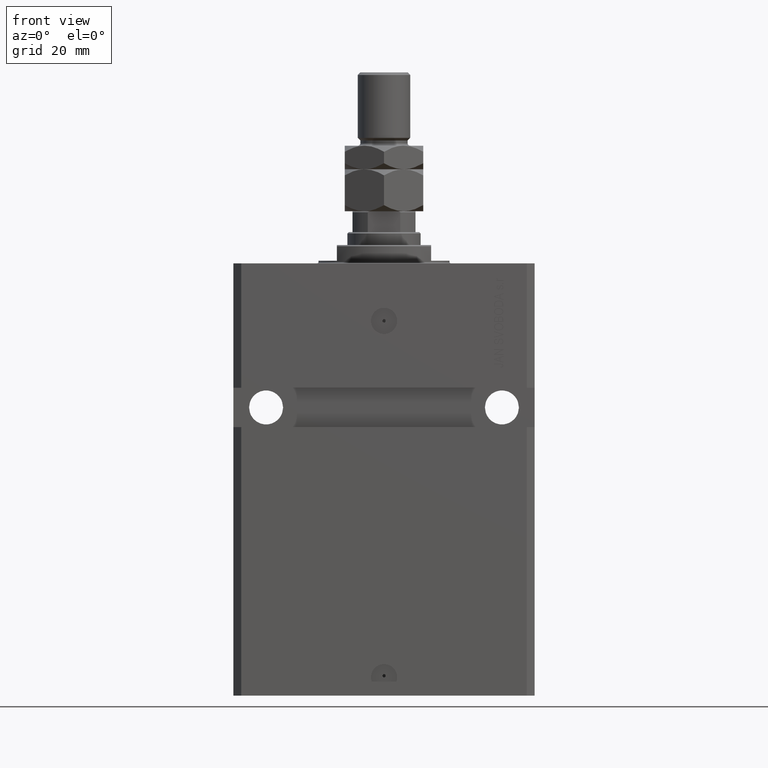
[diagram: clean part render]
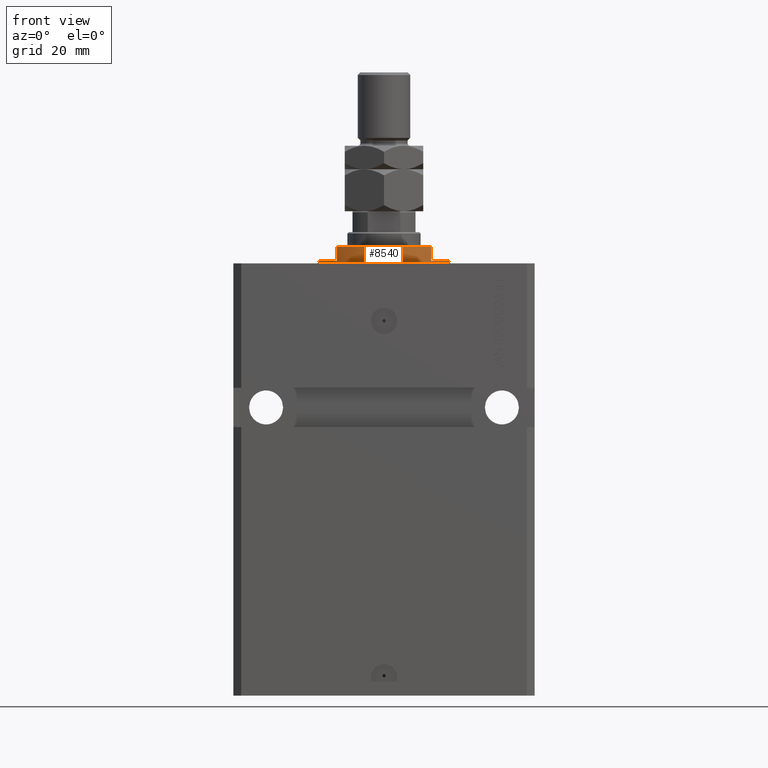
[diagram: same view with one face highlighted and labeled with its STEP entity id]
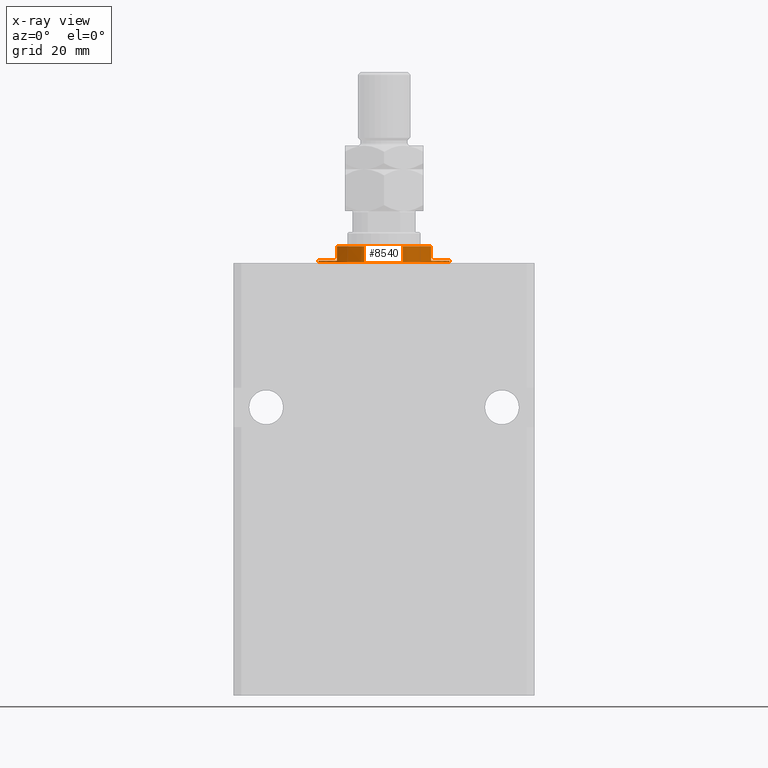
[diagram: x-ray of the same camera — body ghosted, the highlighted face saturated]
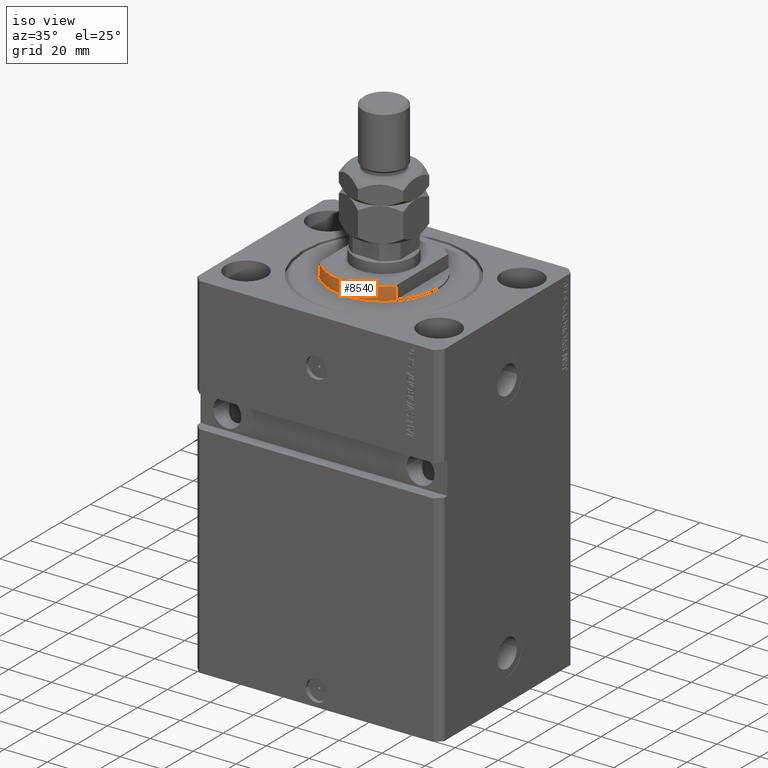
[diagram: same view with one face highlighted and labeled with its STEP entity id]
A machine part, front view. The second image highlights one B-rep face of the part: STEP entity #8540.
The next image is the same camera in x-ray: the body ghosted, the highlighted face saturated — about 0% of this face is hidden behind the body in this view.
A second angle (iso view) of the same face is appended — the face is thin or edge-on in the first view.
In plain terms, the highlighted cylindrical surface (partial cylindrical patch) has radius 25 mm, axis along (0, 0, -1).
Its self-contained STEP definition (entity closure, byte-faithful):
#126 = AXIS2_PLACEMENT_3D ( 'NONE', #12617, #46603, #38848 ) ;
#620 = DIRECTION ( 'NONE',  ( 0.000000000000000000, 0.000000000000000000, -1.000000000000000000 ) ) ;
#1691 = DIRECTION ( 'NONE',  ( -0.000000000000000000, -0.000000000000000000, 1.000000000000000000 ) ) ;
#1914 = VERTEX_POINT ( 'NONE', #24961 ) ;
#4361 = DIRECTION ( 'NONE',  ( -0.000000000000000000, -0.000000000000000000, 1.000000000000000000 ) ) ;
#4536 = VECTOR ( 'NONE', #31684, 1000.000000000000000 ) ;
#5081 = DIRECTION ( 'NONE',  ( 1.000000000000000000, 0.000000000000000000, 0.000000000000000000 ) ) ;
#5571 = LINE ( 'NONE', #34995, #21877 ) ;
#5579 = AXIS2_PLACEMENT_3D ( 'NONE', #23525, #32817, #38314 ) ;
#8540 = ADVANCED_FACE ( 'NONE', ( #26515 ), #16046, .T. ) ;
#8973 = ORIENTED_EDGE ( 'NONE', *, *, #14173, .T. ) ;
#10666 = AXIS2_PLACEMENT_3D ( 'NONE', #34275, #4361, #5081 ) ;
#11076 = CARTESIAN_POINT ( 'NONE',  ( -18.00000000000000000, -17.34935157289747920, -7.000000000000000000 ) ) ;
#12617 = CARTESIAN_POINT ( 'NONE',  ( 0.000000000000000000, 0.000000000000000000, -1.000000000000000000 ) ) ;
#12660 = LINE ( 'NONE', #20215, #31200 ) ;
#13334 = AXIS2_PLACEMENT_3D ( 'NONE', #32789, #47808, #40768 ) ;
#13555 = CARTESIAN_POINT ( 'NONE',  ( -25.00000000000000000, 3.061616997868383043E-15, -0.4999999999999995559 ) ) ;
#13856 = ORIENTED_EDGE ( 'NONE', *, *, #30691, .F. ) ;
#14173 = EDGE_CURVE ( 'NONE', #42818, #40087, #35565, .T. ) ;
#14228 = CARTESIAN_POINT ( 'NONE',  ( 18.00000000000000000, -17.34935157289747920, -6.499999999999971578 ) ) ;
#14982 = LINE ( 'NONE', #11076, #27025 ) ;
#15184 = DIRECTION ( 'NONE',  ( -1.000000000000000000, 0.000000000000000000, 0.000000000000000000 ) ) ;
#16000 = CARTESIAN_POINT ( 'NONE',  ( 25.00000000000000000, 0.000000000000000000, -0.4999999999999995559 ) ) ;
#16046 = CYLINDRICAL_SURFACE ( 'NONE', #10666, 25.00000000000000000 ) ;
#18752 = EDGE_CURVE ( 'NONE', #26145, #20431, #14982, .T. ) ;
#20215 = CARTESIAN_POINT ( 'NONE',  ( 18.00000000000000000, -17.34935157289747920, -7.000000000000000000 ) ) ;
#20431 = VERTEX_POINT ( 'NONE', #39329 ) ;
#21229 = CARTESIAN_POINT ( 'NONE',  ( 18.00000000000000000, -17.34935157289747920, -1.000000000000000000 ) ) ;
#21877 = VECTOR ( 'NONE', #1691, 1000.000000000000000 ) ;
#23400 = DIRECTION ( 'NONE',  ( 0.000000000000000000, 0.000000000000000000, -1.000000000000000000 ) ) ;
#23404 = ORIENTED_EDGE ( 'NONE', *, *, #31419, .F. ) ;
#23525 = CARTESIAN_POINT ( 'NONE',  ( 0.000000000000000000, 0.000000000000000000, -1.000000000000000000 ) ) ;
#24782 = VERTEX_POINT ( 'NONE', #14228 ) ;
#24961 = CARTESIAN_POINT ( 'NONE',  ( -25.00000000000000000, 3.061616997868383043E-15, -1.000000000000000000 ) ) ;
#26145 = VERTEX_POINT ( 'NONE', #26973 ) ;
#26515 = FACE_OUTER_BOUND ( 'NONE', #30505, .T. ) ;
#26973 = CARTESIAN_POINT ( 'NONE',  ( -18.00000000000000000, -17.34935157289747920, -1.000000000000000000 ) ) ;
#26984 = ORIENTED_EDGE ( 'NONE', *, *, #18752, .T. ) ;
#27025 = VECTOR ( 'NONE', #620, 1000.000000000000000 ) ;
#27345 = CARTESIAN_POINT ( 'NONE',  ( 25.00000000000000000, 0.000000000000000000, -7.000000000000000000 ) ) ;
#27992 = EDGE_CURVE ( 'NONE', #47142, #24782, #12660, .T. ) ;
#28157 = EDGE_CURVE ( 'NONE', #26145, #1914, #28874, .T. ) ;
#28513 = EDGE_CURVE ( 'NONE', #20431, #24782, #38199, .T. ) ;
#28874 = CIRCLE ( 'NONE', #5579, 25.00000000000000000 ) ;
#30255 = DIRECTION ( 'NONE',  ( 0.000000000000000000, 0.000000000000000000, 1.000000000000000000 ) ) ;
#30505 = EDGE_LOOP ( 'NONE', ( #13856, #38922, #26984, #45877, #46822, #23404, #8973, #37176 ) ) ;
#30691 = EDGE_CURVE ( 'NONE', #1914, #44910, #5571, .T. ) ;
#30949 = EDGE_CURVE ( 'NONE', #40087, #44910, #34296, .T. ) ;
#31200 = VECTOR ( 'NONE', #23400, 1000.000000000000000 ) ;
#31419 = EDGE_CURVE ( 'NONE', #42818, #47142, #32753, .T. ) ;
#31684 = DIRECTION ( 'NONE',  ( -0.000000000000000000, -0.000000000000000000, 1.000000000000000000 ) ) ;
#32753 = CIRCLE ( 'NONE', #126, 25.00000000000000000 ) ;
#32789 = CARTESIAN_POINT ( 'NONE',  ( 0.000000000000000000, 0.000000000000000000, -0.4999999999999995559 ) ) ;
#32817 = DIRECTION ( 'NONE',  ( 0.000000000000000000, 0.000000000000000000, -1.000000000000000000 ) ) ;
#34275 = CARTESIAN_POINT ( 'NONE',  ( 0.000000000000000000, 0.000000000000000000, -7.000000000000000000 ) ) ;
#34296 = CIRCLE ( 'NONE', #13334, 25.00000000000000000 ) ;
#34331 = AXIS2_PLACEMENT_3D ( 'NONE', #45295, #30255, #15184 ) ;
#34995 = CARTESIAN_POINT ( 'NONE',  ( -25.00000000000000000, 3.061616997868383043E-15, -7.000000000000000000 ) ) ;
#35565 = LINE ( 'NONE', #27345, #4536 ) ;
#37176 = ORIENTED_EDGE ( 'NONE', *, *, #30949, .T. ) ;
#38199 = CIRCLE ( 'NONE', #34331, 25.00000000000000000 ) ;
#38314 = DIRECTION ( 'NONE',  ( -1.000000000000000000, 0.000000000000000000, 0.000000000000000000 ) ) ;
#38848 = DIRECTION ( 'NONE',  ( -1.000000000000000000, 0.000000000000000000, 0.000000000000000000 ) ) ;
#38922 = ORIENTED_EDGE ( 'NONE', *, *, #28157, .F. ) ;
#39329 = CARTESIAN_POINT ( 'NONE',  ( -18.00000000000000000, -17.34935157289747920, -6.499999999999969802 ) ) ;
#40087 = VERTEX_POINT ( 'NONE', #16000 ) ;
#40768 = DIRECTION ( 'NONE',  ( 1.000000000000000000, 0.000000000000000000, 0.000000000000000000 ) ) ;
#42818 = VERTEX_POINT ( 'NONE', #46366 ) ;
#44910 = VERTEX_POINT ( 'NONE', #13555 ) ;
#45295 = CARTESIAN_POINT ( 'NONE',  ( 0.000000000000000000, 0.000000000000000000, -6.499999999999971578 ) ) ;
#45877 = ORIENTED_EDGE ( 'NONE', *, *, #28513, .T. ) ;
#46366 = CARTESIAN_POINT ( 'NONE',  ( 25.00000000000000000, 0.000000000000000000, -1.000000000000000000 ) ) ;
#46603 = DIRECTION ( 'NONE',  ( 0.000000000000000000, 0.000000000000000000, -1.000000000000000000 ) ) ;
#46822 = ORIENTED_EDGE ( 'NONE', *, *, #27992, .F. ) ;
#47142 = VERTEX_POINT ( 'NONE', #21229 ) ;
#47808 = DIRECTION ( 'NONE',  ( -0.000000000000000000, -0.000000000000000000, -1.000000000000000000 ) ) ;